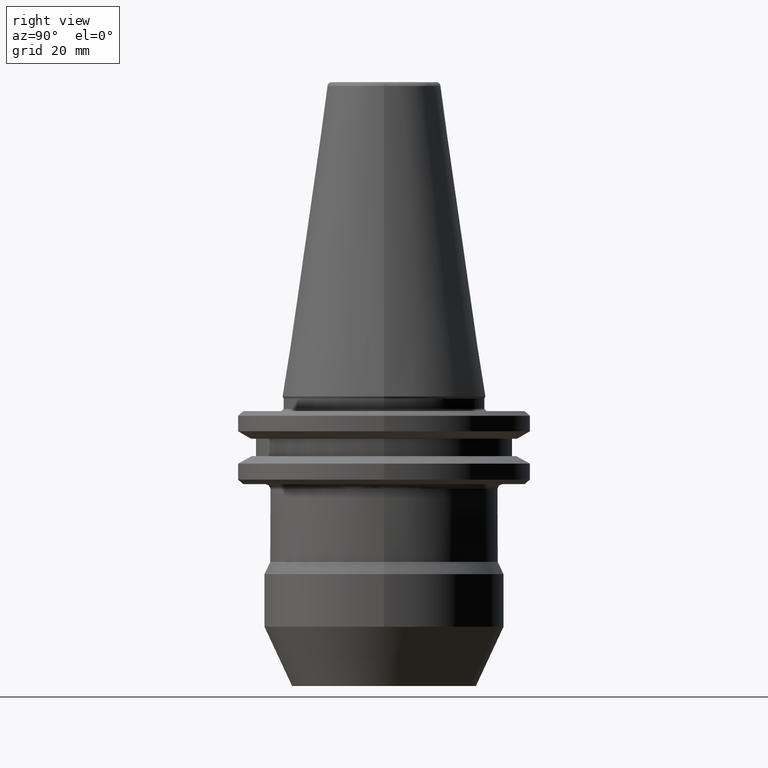
[diagram: clean part render]
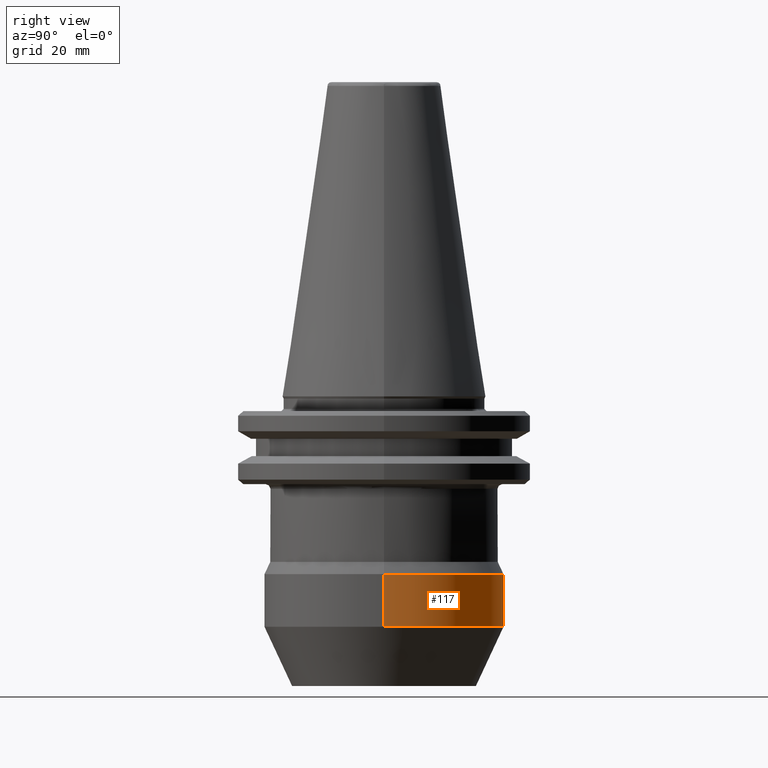
[diagram: same view with one face highlighted and labeled with its STEP entity id]
A machine part, right view. The second image highlights one B-rep face of the part: STEP entity #117.
In plain terms, the highlighted cylindrical surface (partial cylindrical patch) has radius 26 mm, axis along (0, 0, 1).
Its self-contained STEP definition (entity closure, byte-faithful):
#15 = CARTESIAN_POINT ( 'NONE',  ( -26.00000000000000700, 3.184081677783119000E-015, 82.95681253582424100 ) ) ;
#35 = CARTESIAN_POINT ( 'NONE',  ( -26.00000000000000700, 3.184081677783119000E-015, -50.13295847694237800 ) ) ;
#41 = CYLINDRICAL_SURFACE ( 'NONE', #1541, 26.00000000000000700 ) ;
#97 = EDGE_CURVE ( 'NONE', #1395, #1116, #1607, .T. ) ;
#107 = VECTOR ( 'NONE', #618, 1000.000000000000000 ) ;
#110 = FACE_OUTER_BOUND ( 'NONE', #226, .T. ) ;
#117 = ADVANCED_FACE ( 'NONE', ( #110 ), #41, .T. ) ;
#226 = EDGE_LOOP ( 'NONE', ( #620, #1236, #846, #813, #1056 ) ) ;
#234 = VERTEX_POINT ( 'NONE', #1163 ) ;
#265 = DIRECTION ( 'NONE',  ( 0.0000000000000000000, 0.0000000000000000000, 1.000000000000000000 ) ) ;
#274 = CARTESIAN_POINT ( 'NONE',  ( 0.0000000000000000000, 0.0000000000000000000, -50.13295847694237800 ) ) ;
#283 = DIRECTION ( 'NONE',  ( 1.000000000000000000, 0.0000000000000000000, 0.0000000000000000000 ) ) ;
#324 = EDGE_CURVE ( 'NONE', #942, #980, #1585, .T. ) ;
#526 = CARTESIAN_POINT ( 'NONE',  ( 26.00000000000000700, 0.0000000000000000000, 82.95681253582424100 ) ) ;
#544 = EDGE_CURVE ( 'NONE', #234, #1395, #965, .T. ) ;
#573 = DIRECTION ( 'NONE',  ( 1.000000000000000000, 0.0000000000000000000, 0.0000000000000000000 ) ) ;
#618 = DIRECTION ( 'NONE',  ( 0.0000000000000000000, 0.0000000000000000000, 1.000000000000000000 ) ) ;
#620 = ORIENTED_EDGE ( 'NONE', *, *, #324, .T. ) ;
#636 = DIRECTION ( 'NONE',  ( -1.000000000000000000, 0.0000000000000000000, 0.0000000000000000000 ) ) ;
#673 = VECTOR ( 'NONE', #1643, 1000.000000000000000 ) ;
#709 = EDGE_CURVE ( 'NONE', #234, #942, #1447, .T. ) ;
#711 = CARTESIAN_POINT ( 'NONE',  ( 26.00000000000000000, 0.0000000000000000000, -38.67999999999999300 ) ) ;
#752 = DIRECTION ( 'NONE',  ( -0.0000000000000000000, -0.0000000000000000000, 1.000000000000000000 ) ) ;
#787 = AXIS2_PLACEMENT_3D ( 'NONE', #274, #265, #283 ) ;
#813 = ORIENTED_EDGE ( 'NONE', *, *, #544, .F. ) ;
#846 = ORIENTED_EDGE ( 'NONE', *, *, #97, .F. ) ;
#942 = VERTEX_POINT ( 'NONE', #1020 ) ;
#965 = LINE ( 'NONE', #526, #107 ) ;
#980 = VERTEX_POINT ( 'NONE', #35 ) ;
#1020 = CARTESIAN_POINT ( 'NONE',  ( 3.184081677783119000E-015, 26.00000000000000700, -50.13295847694237800 ) ) ;
#1056 = ORIENTED_EDGE ( 'NONE', *, *, #709, .T. ) ;
#1084 = EDGE_CURVE ( 'NONE', #980, #1116, #1466, .T. ) ;
#1108 = AXIS2_PLACEMENT_3D ( 'NONE', #1455, #1166, #573 ) ;
#1116 = VERTEX_POINT ( 'NONE', #1625 ) ;
#1163 = CARTESIAN_POINT ( 'NONE',  ( 26.00000000000000700, 0.0000000000000000000, -50.13295847694237800 ) ) ;
#1166 = DIRECTION ( 'NONE',  ( 0.0000000000000000000, 0.0000000000000000000, 1.000000000000000000 ) ) ;
#1236 = ORIENTED_EDGE ( 'NONE', *, *, #1084, .T. ) ;
#1264 = CARTESIAN_POINT ( 'NONE',  ( 0.0000000000000000000, 0.0000000000000000000, 82.95681253582424100 ) ) ;
#1288 = DIRECTION ( 'NONE',  ( 1.000000000000000000, 0.0000000000000000000, 0.0000000000000000000 ) ) ;
#1319 = AXIS2_PLACEMENT_3D ( 'NONE', #1408, #752, #636 ) ;
#1395 = VERTEX_POINT ( 'NONE', #711 ) ;
#1408 = CARTESIAN_POINT ( 'NONE',  ( 0.0000000000000000000, 0.0000000000000000000, -38.67999999999999300 ) ) ;
#1428 = DIRECTION ( 'NONE',  ( 0.0000000000000000000, 0.0000000000000000000, 1.000000000000000000 ) ) ;
#1447 = CIRCLE ( 'NONE', #787, 26.00000000000000700 ) ;
#1455 = CARTESIAN_POINT ( 'NONE',  ( 0.0000000000000000000, 0.0000000000000000000, -50.13295847694237800 ) ) ;
#1466 = LINE ( 'NONE', #15, #673 ) ;
#1541 = AXIS2_PLACEMENT_3D ( 'NONE', #1264, #1428, #1288 ) ;
#1585 = CIRCLE ( 'NONE', #1108, 26.00000000000000700 ) ;
#1607 = CIRCLE ( 'NONE', #1319, 25.99999999999999600 ) ;
#1625 = CARTESIAN_POINT ( 'NONE',  ( -26.00000000000000000, 3.184081677783118600E-015, -38.67999999999999300 ) ) ;
#1643 = DIRECTION ( 'NONE',  ( 0.0000000000000000000, 0.0000000000000000000, 1.000000000000000000 ) ) ;